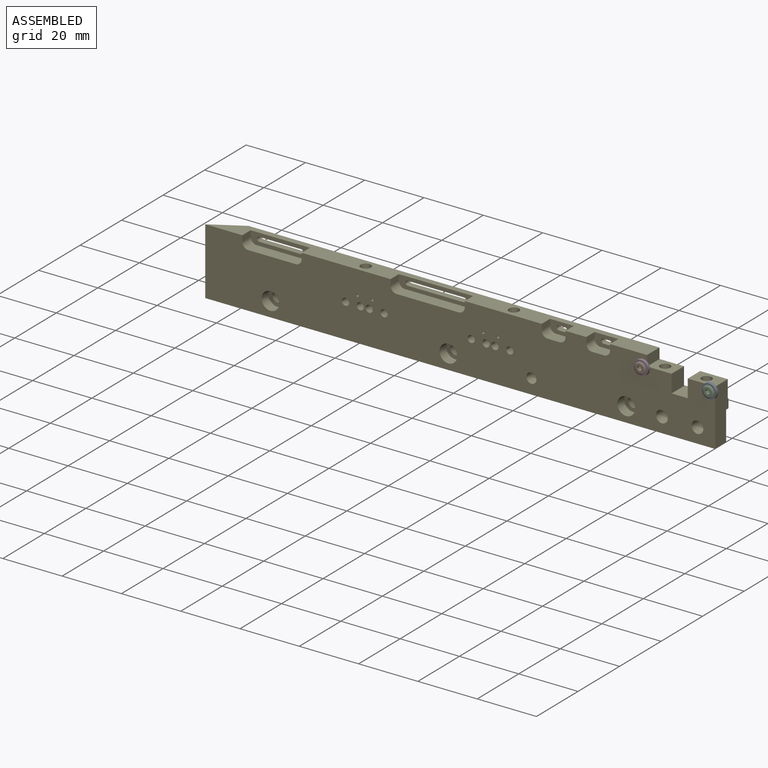
[diagram: assembled view]
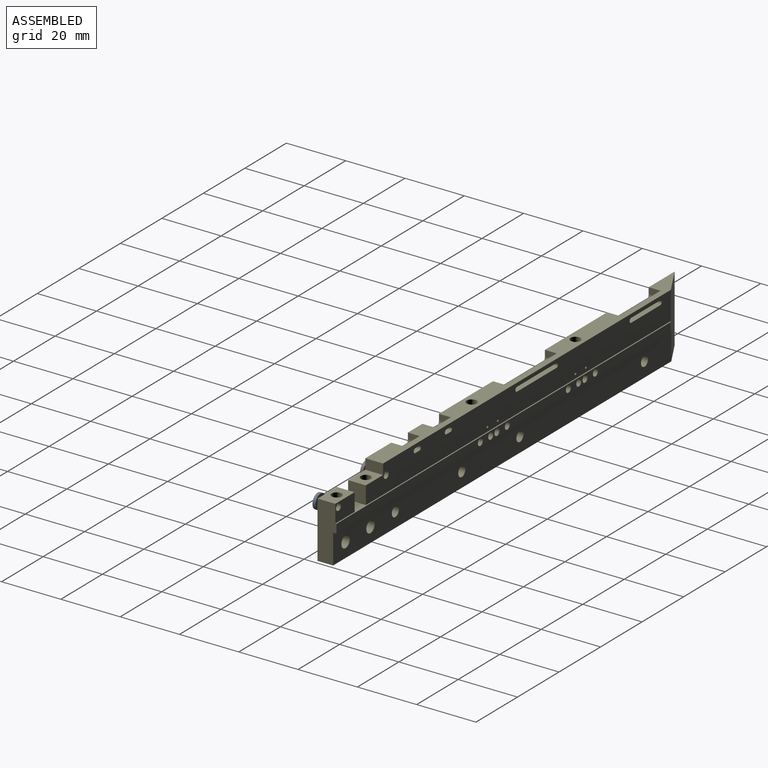
[diagram: assembled view, second angle]
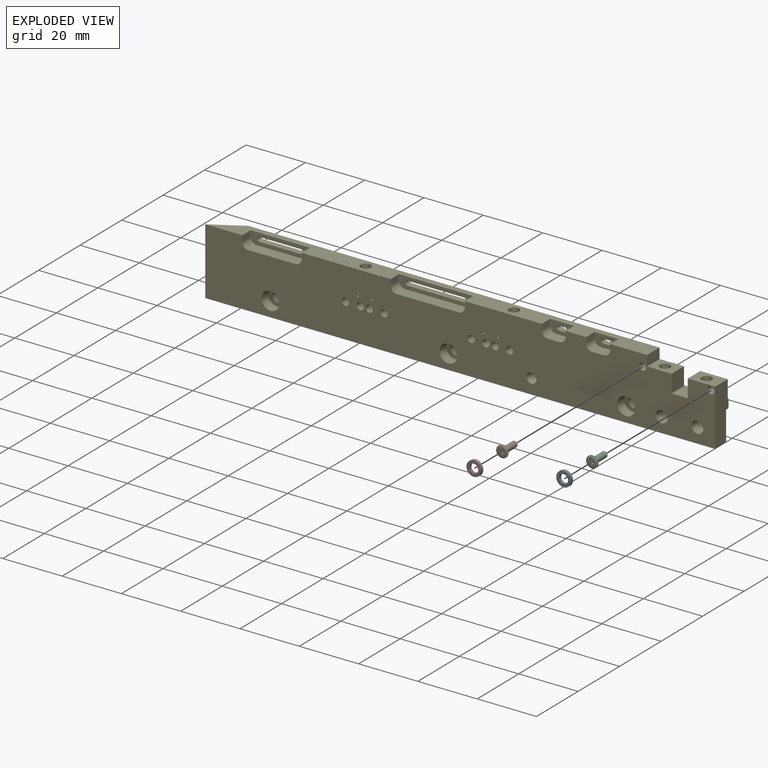
[diagram: exploded view]
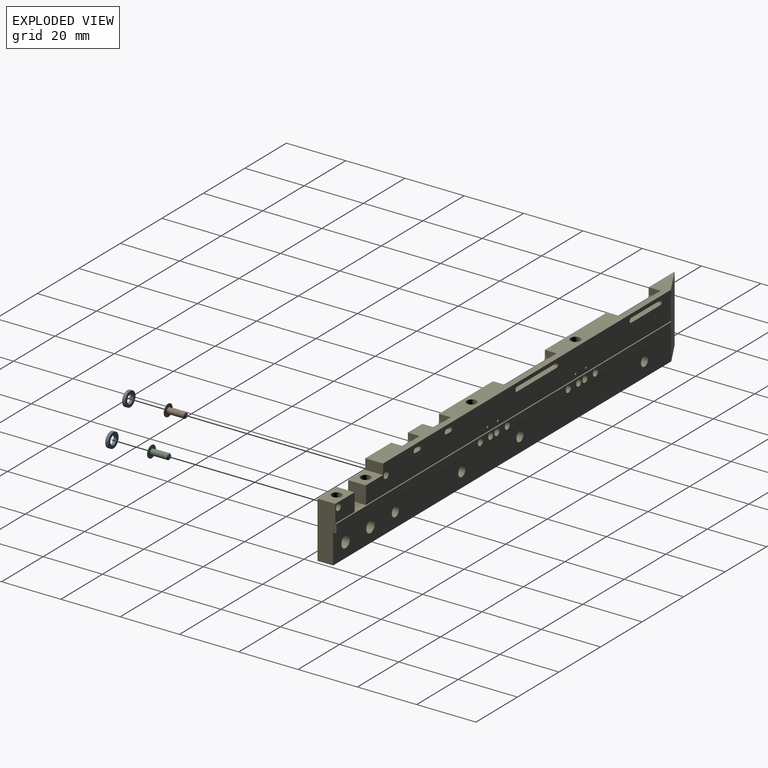
[diagram: exploded view, second angle]
ASSEMBLY  parts=5 mates=4
PART A: 4 faces, bbox 5x1x5 mm
  f0: cylinder r=1.5mm len=3mm, axis (0,-1,0), area 9.4mm2, adj f2,f3
  f1: cylinder r=2.5mm len=5mm, axis (0,-1,0), area 15.7mm2, adj f2,f3
  f2: plane 5x5mm, normal (0,1,0), area 12.6mm2, adj f0,f1
  f3: plane 5x5mm, normal (0,-1,0), area 12.6mm2, adj f0,f1
PART B: 23 faces, bbox 6.5x4x4 mm
  f0: cone r=1.52mm half-angle=60deg, axis (1,0,0), area 6.1mm2, adj f1,f16
  f1: plane 3.04x3.04mm, normal (-1,0,0), area 5.8mm2, adj f0,f2,f3,f4,f5,f6,f7
  f2: plane 1.2x0.65mm, normal (0,-0.87,0.5), area 0.9mm2, adj f1,f3,f4,f19,f20
  f3: plane 1.2x0.65mm, normal (0,-0.87,-0.5), area 0.9mm2, adj f1,f2,f7,f20,f21
  f4: plane 1.2x0.75mm, normal (0,0,1), area 0.9mm2, adj f1,f2,f5,f17,f19
  f5: plane 1.2x0.65mm, normal (0,0.87,0.5), area 0.9mm2, adj f1,f4,f6,f17,f18
  f6: plane 1.2x0.65mm, normal (0,0.87,-0.5), area 0.9mm2, adj f1,f5,f7,f18,f22
  f7: plane 1.2x0.75mm, normal (0,0,-1), area 0.9mm2, adj f1,f3,f6,f21,f22
  f8: cone r=0.65mm half-angle=60deg, axis (-1,0,0), area 1.5mm2, adj f17,f18,f19,f20,f21,f22
  f9: plane 1.51x1.51mm, normal (1,0,0), area 1.8mm2, adj f10
  f10: cone r=1mm half-angle=45deg, axis (-1,0,0), area 1.9mm2, adj f9,f11
  f11: cylinder r=1mm len=4.55mm, axis (-1,0,0), area 28.6mm2, adj f10,f12
  f12: cone r=0.88mm half-angle=17.1deg, axis (1,0,0), area 2.5mm2, adj f11,f13
  f13: cylinder r=0.88mm len=1.75mm, axis (-1,0,0), area 3.9mm2, adj f12,f14
  f14: torus R=0.98mm, axis (1,0,0), area 0.9mm2, adj f13,f15
  f15: plane 4x4mm, normal (1,0,0), area 9.6mm2, adj f14,f16
  f16: cylinder r=2mm len=4mm, axis (-1,0,0), area 2.8mm2, adj f0,f15
  f17: plane 0.56x0.33mm, normal (-1,0,0), area 0mm2, adj f4,f5,f8
  f18: plane 0.65x0.19mm, normal (-1,0,0), area 0mm2, adj f5,f6,f8
  f19: plane 0.56x0.33mm, normal (-1,0,0), area 0mm2, adj f2,f4,f8
  f20: plane 0.65x0.19mm, normal (-1,0,0), area 0mm2, adj f2,f3,f8
  f21: plane 0.56x0.33mm, normal (-1,0,0), area 0mm2, adj f3,f7,f8
  f22: plane 0.56x0.33mm, normal (-1,0,0), area 0mm2, adj f6,f7,f8
PART C: same geometry as B
PART D: same geometry as A
PART E: 90 faces, bbox 172x6.4x22.5 mm
  f0: plane 146.89x9.5mm, normal (0,1,0), area 1297.4mm2, adj f3,f4,f8,f9,f10,f11,f12,f13
  f1: plane 8x4mm, normal (0,-1,0), area 25.5mm2, adj f4,f47,f48,f49,f50,f51,f72,f73
  f2: plane 172x22.5mm, normal (0,-1,0), area 3353.4mm2, adj f3,f4,f5,f6,f7,f8,f9,f10
  f3: plane 161.61x6.4mm, normal (0,0,1), area 97.2mm2, adj f0,f2,f5,f7,f8,f16,f39,f40
  f4: plane 149x6mm, normal (0,0,1), area 600.7mm2, adj f0,f1,f2,f10,f40,f41,f45,f46
  f5: plane 19x6.4mm, normal (1,0,0), area 107.7mm2, adj f2,f3,f6,f15,f16,f17,f18,f39
  f6: plane 9.27x6mm, normal (0,0,1), area 46.5mm2, adj f2,f5,f7,f39,f80
  f7: plane 6x6mm, normal (-1,0,0), area 36mm2, adj f2,f3,f6,f39
  f8: plane 6x6mm, normal (1,0,0), area 36mm2, adj f0,f2,f3,f9
  f9: plane 8.28x6mm, normal (0,0,1), area 40.6mm2, adj f0,f2,f8,f10,f82
  f10: plane 6x3.5mm, normal (1,0,0), area 21mm2, adj f0,f2,f4,f9
  f11: cylinder r=0.4mm len=6mm, axis (0,-1,0), area 15.1mm2, adj f0,f2
  f12: cylinder r=0.4mm len=6mm, axis (0,-1,0), area 15.1mm2, adj f0,f2
  f13: cylinder r=0.4mm len=6mm, axis (0,-1,0), area 15.1mm2, adj f0,f2
  f14: cylinder r=0.4mm len=6mm, axis (0,-1,0), area 15.1mm2, adj f0,f2
  f15: plane 172x5.25mm, normal (0,0,-1), area 879.1mm2, adj f2,f5,f18,f40
  f16: plane 160.92x3mm, normal (0,1,0), area 446.6mm2, adj f3,f5,f17,f31,f32,f33,f34,f35
  f17: plane 162.91x1.15mm, normal (0,0,-1), area 186.2mm2, adj f5,f16,f18,f40
  f18: plane 162.91x10mm, normal (0,1,0), area 1567.6mm2, adj f5,f15,f17,f19,f20,f21,f24,f27
  f19: cylinder r=2mm len=5.25mm, axis (0,-1,0), area 66mm2, adj f2,f18
  f20: cylinder r=2mm len=5.25mm, axis (0,-1,0), area 66mm2, adj f2,f18
  f21: cylinder r=1.7mm len=3.4mm, axis (0,-1,0), area 20.8mm2, adj f18,f22
  f22: plane 6x6mm, normal (0,-1,0), area 19.2mm2, adj f21,f23
  f23: cylinder r=3mm len=6mm, axis (0,-1,0), area 62.2mm2, adj f2,f22
  f24: cylinder r=1.7mm len=3.4mm, axis (0,-1,0), area 20.8mm2, adj f18,f25
  f25: plane 6x6mm, normal (0,-1,0), area 19.2mm2, adj f24,f26
  f26: cylinder r=3mm len=6mm, axis (0,-1,0), area 62.2mm2, adj f2,f25
  f27: cylinder r=1.7mm len=3.4mm, axis (0,-1,0), area 20.8mm2, adj f18,f28
  f28: plane 6x6mm, normal (0,-1,0), area 19.2mm2, adj f27,f29
  f29: cylinder r=3mm len=6mm, axis (0,-1,0), area 62.2mm2, adj f2,f28
  f30: cylinder r=1.7mm len=5.25mm, axis (0,-1,0), area 56.1mm2, adj f2,f18
  f31: cylinder r=1.2mm len=6.4mm, axis (0,-1,0), area 48.3mm2, adj f2,f16
  f32: cylinder r=1.2mm len=6.4mm, axis (0,-1,0), area 48.3mm2, adj f2,f16
  f33: cylinder r=1.2mm len=6.4mm, axis (0,-1,0), area 48.3mm2, adj f2,f16
  f34: cylinder r=1.2mm len=6.4mm, axis (0,-1,0), area 48.3mm2, adj f2,f16
  f35: cylinder r=1.2mm len=6.4mm, axis (0,-1,0), area 48.3mm2, adj f2,f16
  f36: cylinder r=1.2mm len=6.4mm, axis (0,-1,0), area 48.3mm2, adj f2,f16
  f37: cylinder r=1.2mm len=6.4mm, axis (0,-1,0), area 48.3mm2, adj f2,f16
  f38: cylinder r=1.2mm len=6.4mm, axis (0,-1,0), area 48.3mm2, adj f2,f16
  f39: plane 9.27x6mm, normal (0,1,0), area 51.1mm2, adj f3,f5,f6,f7,f89
  f40: plane 22.5x11.09mm, normal (-0.5,0.87,0), area 257.4mm2, adj f0,f2,f3,f4,f15,f16,f17,f18
  f41: plane 4x2mm, normal (1,0,0), area 8mm2, adj f2,f4,f42,f46
  f42: cylinder r=2mm len=4mm, axis (0,-1,0), area 12.6mm2, adj f2,f41,f43,f46
  f43: plane 4x4mm, normal (0,0,1), area 16mm2, adj f2,f42,f44,f46
  f44: cylinder r=2mm len=4mm, axis (0,-1,0), area 12.6mm2, adj f2,f43,f45,f46
  f45: plane 4x2mm, normal (-1,0,0), area 8mm2, adj f2,f4,f44,f46
  f46: plane 8x4mm, normal (0,-1,0), area 25.5mm2, adj f4,f41,f42,f43,f44,f45,f76,f77
  f47: plane 4x2mm, normal (1,0,0), area 8mm2, adj f1,f2,f4,f48
  f48: cylinder r=2mm len=4mm, axis (0,-1,0), area 12.6mm2, adj f1,f2,f47,f49
  f49: plane 4x4mm, normal (0,0,1), area 16mm2, adj f1,f2,f48,f50
  f50: cylinder r=2mm len=4mm, axis (0,-1,0), area 12.6mm2, adj f1,f2,f49,f51
  f51: plane 4x2mm, normal (-1,0,0), area 8mm2, adj f1,f2,f4,f50
  f52: plane 4x2mm, normal (1,0,0), area 8mm2, adj f2,f4,f53,f57
  f53: cylinder r=2mm len=4mm, axis (0,-1,0), area 12.6mm2, adj f2,f52,f54,f57
  f54: plane 21x4mm, normal (0,0,1), area 84mm2, adj f2,f53,f55,f57
  f55: cylinder r=2mm len=4mm, axis (0,-1,0), area 12.6mm2, adj f2,f54,f56,f57
  f56: plane 4x2mm, normal (-1,0,0), area 8mm2, adj f2,f4,f55,f57
  f57: plane 25x4mm, normal (0,-1,0), area 68mm2, adj f4,f52,f53,f54,f55,f56,f68,f69
  f58: plane 4x2mm, normal (1,0,0), area 8mm2, adj f2,f4,f59,f63
  f59: cylinder r=2mm len=4mm, axis (0,-1,0), area 12.6mm2, adj f2,f58,f60,f63
  f60: plane 16x4mm, normal (0,0,1), area 64mm2, adj f2,f59,f61,f63
  f61: cylinder r=2mm len=4mm, axis (0,-1,0), area 12.6mm2, adj f2,f60,f62,f63
  f62: plane 4x2mm, normal (-1,0,0), area 8mm2, adj f2,f4,f61,f63
  f63: plane 20x4mm, normal (0,-1,0), area 55.5mm2, adj f4,f58,f59,f60,f61,f62,f64,f65
  f64: cylinder r=0.75mm len=2mm, axis (0,1,0), area 4.7mm2, adj f0,f63,f65,f67
  f65: plane 14x2mm, normal (0,0,-1), area 28mm2, adj f0,f63,f64,f66
  f66: cylinder r=0.75mm len=2mm, axis (0,1,0), area 4.7mm2, adj f0,f63,f65,f67
  f67: plane 14x2mm, normal (0,0,1), area 28mm2, adj f0,f63,f64,f66
  f68: cylinder r=0.75mm len=2mm, axis (0,1,0), area 4.7mm2, adj f0,f57,f69,f71
  f69: plane 19x2mm, normal (0,0,-1), area 38mm2, adj f0,f57,f68,f70
  f70: cylinder r=0.75mm len=2mm, axis (0,1,0), area 4.7mm2, adj f0,f57,f69,f71
  f71: plane 19x2mm, normal (0,0,1), area 38mm2, adj f0,f57,f68,f70
  f72: plane 2x2mm, normal (0,0,1), area 4mm2, adj f0,f1,f73,f75
  f73: cylinder r=0.75mm len=2mm, axis (0,1,0), area 4.7mm2, adj f0,f1,f72,f74
  f74: plane 2x2mm, normal (0,0,-1), area 4mm2, adj f0,f1,f73,f75
  f75: cylinder r=0.75mm len=2mm, axis (0,1,0), area 4.7mm2, adj f0,f1,f72,f74
  f76: cylinder r=0.75mm len=2mm, axis (0,1,0), area 4.7mm2, adj f0,f46,f77,f79
  f77: plane 2x2mm, normal (0,0,-1), area 4mm2, adj f0,f46,f76,f78
  f78: cylinder r=0.75mm len=2mm, axis (0,1,0), area 4.7mm2, adj f0,f46,f77,f79
  f79: plane 2x2mm, normal (0,0,1), area 4mm2, adj f0,f46,f76,f78
  f80: cylinder r=1.7mm len=3.4mm, axis (0,0,1), area 26.7mm2, adj f6,f81
  f81: cone r=0mm half-angle=59deg, axis (0,0,1), area 10.6mm2, adj f80
  f82: cylinder r=1.7mm len=3.4mm, axis (0,0,1), area 26.7mm2, adj f9,f83
  f83: cone r=0mm half-angle=59deg, axis (0,0,1), area 10.6mm2, adj f82
  f84: cone r=0mm half-angle=59deg, axis (0,0,1), area 10.6mm2, adj f85
  f85: cylinder r=1.7mm len=6mm, axis (0,0,1), area 64.1mm2, adj f4,f84
  f86: cone r=0mm half-angle=59deg, axis (0,0,1), area 10.6mm2, adj f87
  f87: cylinder r=1.7mm len=6mm, axis (0,0,1), area 64.1mm2, adj f4,f86
  f88: cylinder r=1.2mm len=6mm, axis (0,-1,0), area 45.2mm2, adj f0,f2
  f89: cylinder r=1.2mm len=6mm, axis (0,-1,0), area 45.2mm2, adj f2,f39
PLACE A t=(141.9,25.94,1.75)mm
PLACE B rot(axis=(0,0,1),90deg) t=(118.9,25.9,2.75)mm
PLACE C rot(axis=(0,0,1),90deg) t=(141.9,25.89,1.75)mm
PLACE D t=(118.9,25.94,2.75)mm
PLACE E t=(-28.6,26.94,-15.75)mm
MATE fastened D.f0 <-> E.f88  axis (0,1,0) through (118.9,26.94,2.75)mm
MATE slider C.f0 <-> E.f89  axis (0,1,0) through (141.9,31.64,1.75)mm
MATE slider B.f0 <-> E.f88  axis (0,-1,0) through (118.9,29.38,2.75)mm
MATE fastened A.f0 <-> E.f89  axis (0,1,0) through (141.9,26.94,1.75)mm
